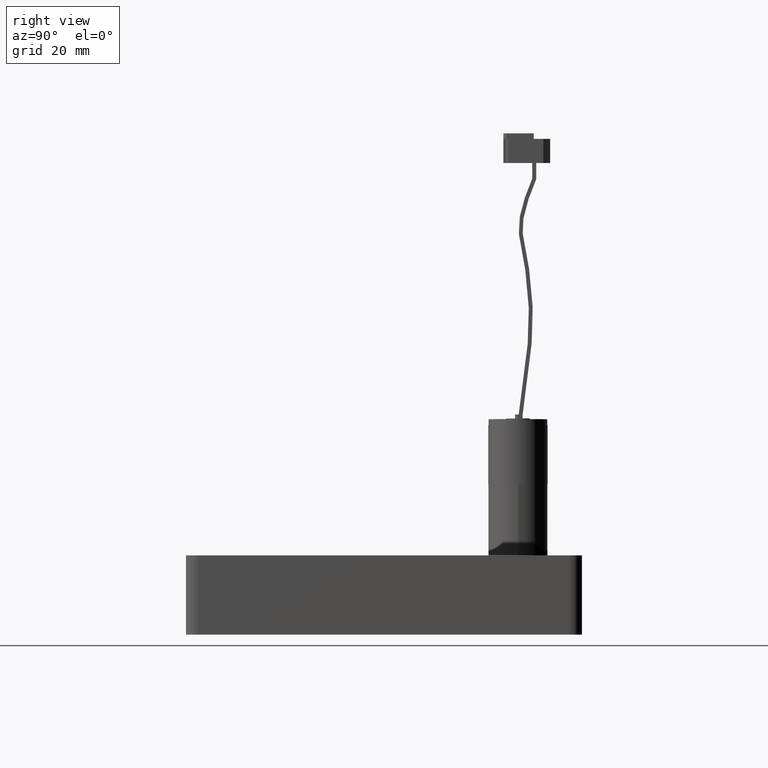
[diagram: clean part render]
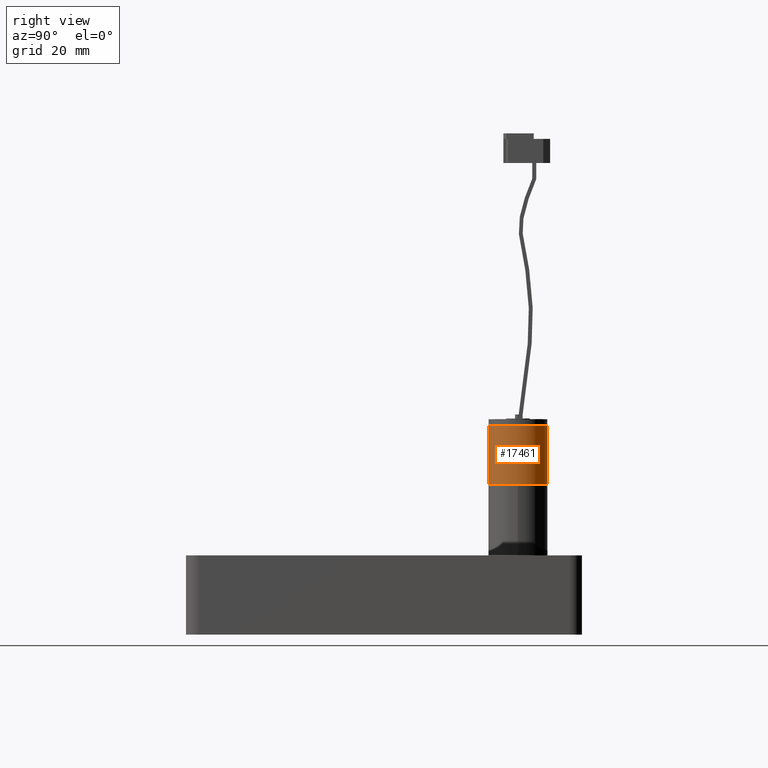
[diagram: same view with one face highlighted and labeled with its STEP entity id]
A machine part, right view. The second image highlights one B-rep face of the part: STEP entity #17461.
In plain terms, the highlighted cylindrical surface (edge-blend (fillet) strip) has radius 7.5 mm, axis along (-0, -0, 1).
Its self-contained STEP definition (entity closure, byte-faithful):
#623 = DIRECTION ( 'NONE',  ( 1.850371707708582500E-015, 1.000000000000000000, 0.0000000000000000000 ) ) ;
#2274 = AXIS2_PLACEMENT_3D ( 'NONE', #14171, #19214, #23354 ) ;
#2353 = DIRECTION ( 'NONE',  ( -1.063288424787887700E-017, -6.030208312509518900E-017, 1.000000000000000000 ) ) ;
#2910 = DIRECTION ( 'NONE',  ( -1.063288424787887700E-017, -6.030208312509518900E-017, 1.000000000000000000 ) ) ;
#3819 = CARTESIAN_POINT ( 'NONE',  ( -28.21369211003874300, 41.33281572999745600, 34.89999999999999900 ) ) ;
#4661 = ORIENTED_EDGE ( 'NONE', *, *, #41811, .F. ) ;
#9045 = AXIS2_PLACEMENT_3D ( 'NONE', #43619, #2910, #19454 ) ;
#10590 = EDGE_CURVE ( 'NONE', #32664, #41421, #38619, .T. ) ;
#10919 = CARTESIAN_POINT ( 'NONE',  ( -28.21369211003874300, 41.33281572999745600, 19.89999999999995200 ) ) ;
#14171 = CARTESIAN_POINT ( 'NONE',  ( -28.21369211003875700, 33.83281572999745600, 19.89999999999995200 ) ) ;
#16782 = CYLINDRICAL_SURFACE ( 'NONE', #9045, 7.500000000000048000 ) ;
#17336 = CIRCLE ( 'NONE', #40423, 7.500000000000048000 ) ;
#17461 = ADVANCED_FACE ( 'NONE', ( #45012 ), #16782, .T. ) ;
#18722 = CARTESIAN_POINT ( 'NONE',  ( -28.21369211003874300, 41.33281572999749900, 19.89999999999995200 ) ) ;
#19214 = DIRECTION ( 'NONE',  ( 1.063288424787887700E-017, 6.030208312509518900E-017, -1.000000000000000000 ) ) ;
#19256 = EDGE_CURVE ( 'NONE', #41421, #29441, #17336, .T. ) ;
#19454 = DIRECTION ( 'NONE',  ( -1.850371707708582500E-015, -1.000000000000000000, 0.0000000000000000000 ) ) ;
#19809 = CARTESIAN_POINT ( 'NONE',  ( -28.21369211003877100, 26.33281572999740700, 19.89999999999995200 ) ) ;
#20357 = CARTESIAN_POINT ( 'NONE',  ( -28.21369211003877100, 26.33281572999745300, 34.89999999999999900 ) ) ;
#21637 = EDGE_LOOP ( 'NONE', ( #38469, #23233, #51475, #4661 ) ) ;
#23233 = ORIENTED_EDGE ( 'NONE', *, *, #10590, .T. ) ;
#23354 = DIRECTION ( 'NONE',  ( 1.850371707708582500E-015, 1.000000000000000000, 0.0000000000000000000 ) ) ;
#28116 = CARTESIAN_POINT ( 'NONE',  ( -28.21369211003877100, 26.33281572999745300, 19.89999999999995200 ) ) ;
#29149 = DIRECTION ( 'NONE',  ( 1.063288424787887700E-017, 6.030208312509518900E-017, -1.000000000000000000 ) ) ;
#29441 = VERTEX_POINT ( 'NONE', #20357 ) ;
#32664 = VERTEX_POINT ( 'NONE', #10919 ) ;
#32817 = VERTEX_POINT ( 'NONE', #28116 ) ;
#32932 = CARTESIAN_POINT ( 'NONE',  ( -28.21369211003875700, 33.83281572999745600, 34.89999999999999900 ) ) ;
#35604 = VECTOR ( 'NONE', #37164, 1000.000000000000000 ) ;
#37164 = DIRECTION ( 'NONE',  ( -1.063288424787887700E-017, -6.030208312509518900E-017, 1.000000000000000000 ) ) ;
#38469 = ORIENTED_EDGE ( 'NONE', *, *, #52805, .F. ) ;
#38619 = LINE ( 'NONE', #18722, #51439 ) ;
#40423 = AXIS2_PLACEMENT_3D ( 'NONE', #32932, #29149, #623 ) ;
#41421 = VERTEX_POINT ( 'NONE', #3819 ) ;
#41811 = EDGE_CURVE ( 'NONE', #32817, #29441, #42623, .T. ) ;
#42623 = LINE ( 'NONE', #19809, #35604 ) ;
#43619 = CARTESIAN_POINT ( 'NONE',  ( -28.21369211003875700, 33.83281572999745600, 19.89999999999995200 ) ) ;
#45012 = FACE_OUTER_BOUND ( 'NONE', #21637, .T. ) ;
#51439 = VECTOR ( 'NONE', #2353, 1000.000000000000000 ) ;
#51475 = ORIENTED_EDGE ( 'NONE', *, *, #19256, .T. ) ;
#52729 = CIRCLE ( 'NONE', #2274, 7.500000000000048000 ) ;
#52805 = EDGE_CURVE ( 'NONE', #32664, #32817, #52729, .T. ) ;